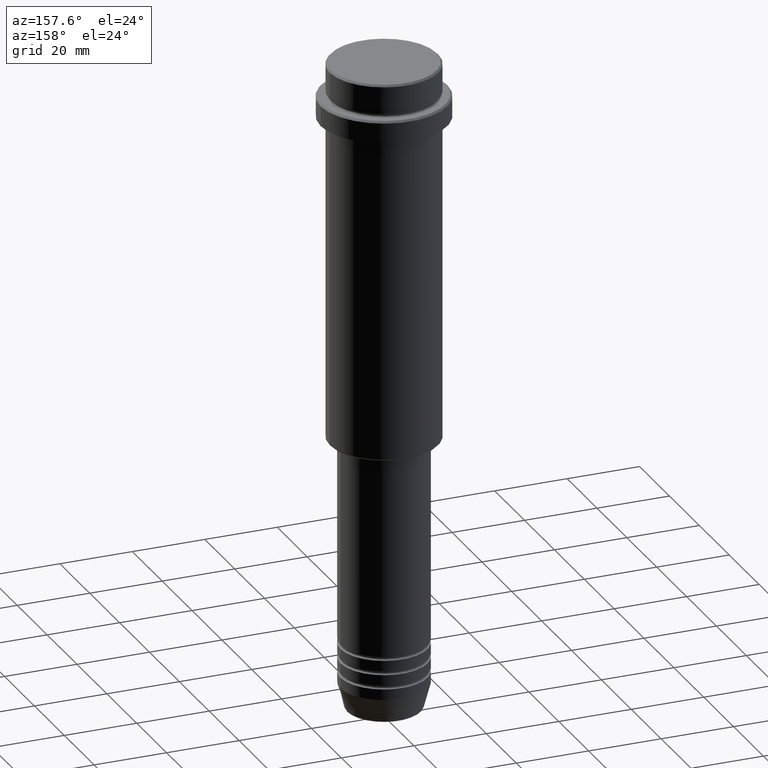
[diagram: clean part render]
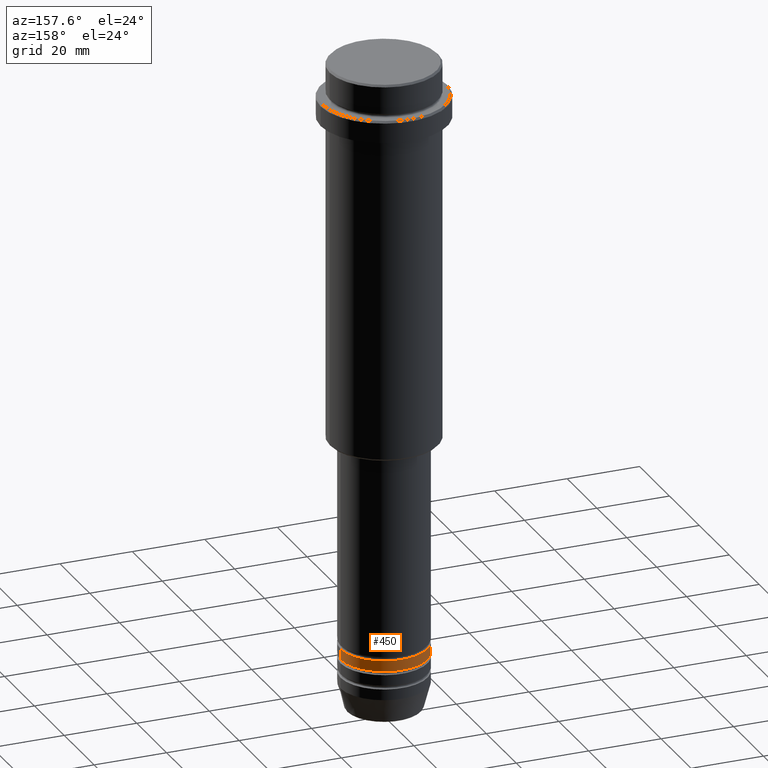
[diagram: same view with one face highlighted and labeled with its STEP entity id]
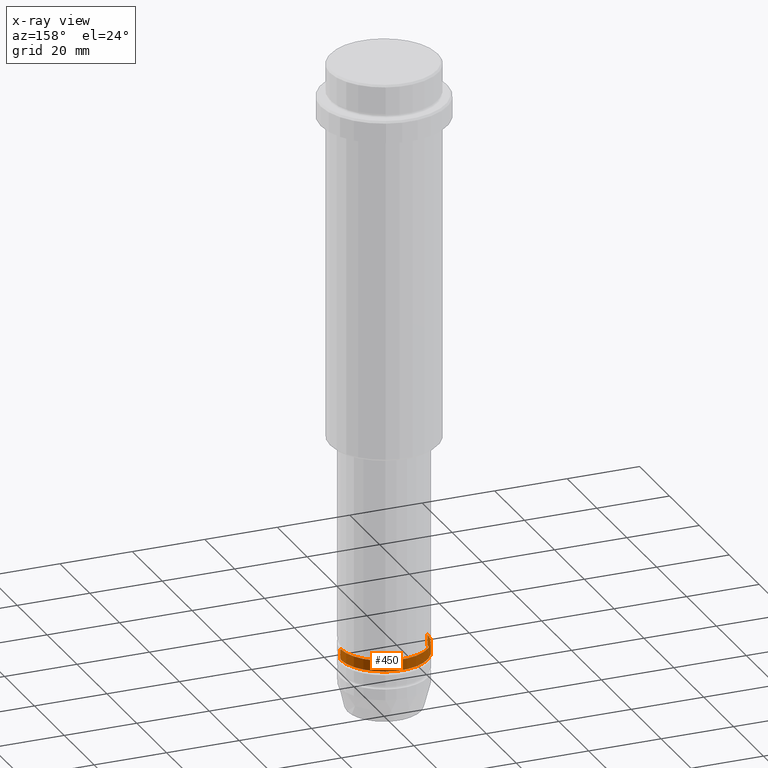
[diagram: x-ray of the same camera — body ghosted, the highlighted face saturated]
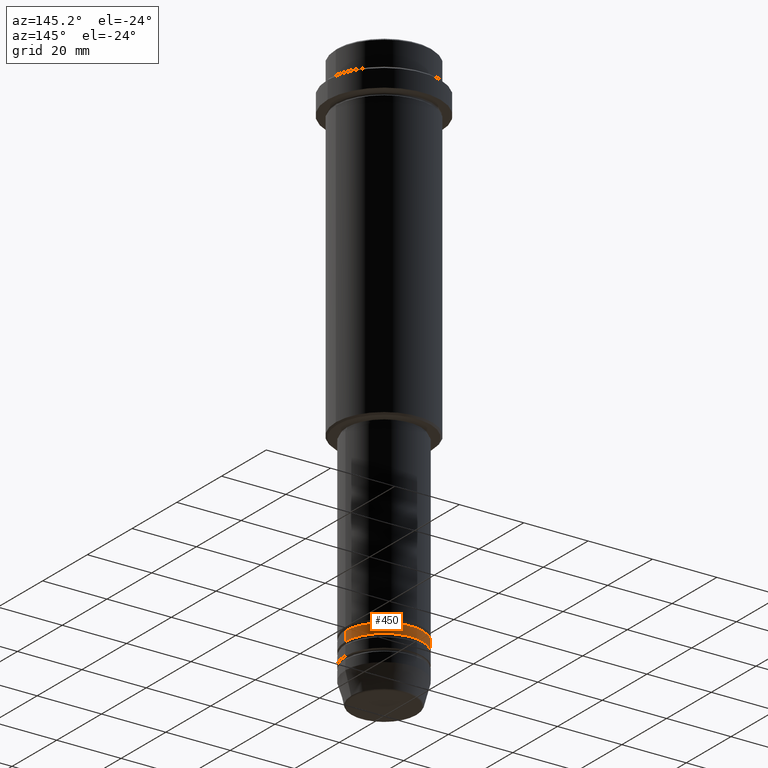
[diagram: same view with one face highlighted and labeled with its STEP entity id]
A machine part, auxiliary view. The second image highlights one B-rep face of the part: STEP entity #450.
The next image is the same camera in x-ray: the body ghosted, the highlighted face saturated — about 0% of this face is hidden behind the body in this view.
A second angle (auxiliary view) of the same face is appended — the face is thin or edge-on in the first view.
In plain terms, the highlighted cylindrical surface (partial cylindrical patch) has radius 12 mm, axis along (-0, -0, 1).
Its self-contained STEP definition (entity closure, byte-faithful):
#22 = AXIS2_PLACEMENT_3D ( 'NONE', #558, #153, #1032 ) ;
#33 = CARTESIAN_POINT ( 'NONE',  ( -12.00000000000000000, 1.469576158976823947E-15, -164.9999999999999147 ) ) ;
#87 = CYLINDRICAL_SURFACE ( 'NONE', #543, 12.00000000000000000 ) ;
#105 = CIRCLE ( 'NONE', #905, 12.00000000000000000 ) ;
#112 = VECTOR ( 'NONE', #1224, 1000.000000000000000 ) ;
#122 = DIRECTION ( 'NONE',  ( -0.000000000000000000, -0.000000000000000000, 1.000000000000000000 ) ) ;
#126 = EDGE_CURVE ( 'NONE', #319, #1051, #236, .T. ) ;
#128 = DIRECTION ( 'NONE',  ( -0.000000000000000000, -0.000000000000000000, 1.000000000000000000 ) ) ;
#147 = LINE ( 'NONE', #581, #112 ) ;
#152 = EDGE_CURVE ( 'NONE', #1247, #319, #105, .T. ) ;
#153 = DIRECTION ( 'NONE',  ( -0.000000000000000000, -0.000000000000000000, 1.000000000000000000 ) ) ;
#158 = CIRCLE ( 'NONE', #22, 12.00000000000000000 ) ;
#236 = LINE ( 'NONE', #868, #679 ) ;
#319 = VERTEX_POINT ( 'NONE', #33 ) ;
#336 = ORIENTED_EDGE ( 'NONE', *, *, #152, .T. ) ;
#363 = VERTEX_POINT ( 'NONE', #401 ) ;
#401 = CARTESIAN_POINT ( 'NONE',  ( 12.00000000000000000, 0.000000000000000000, -161.9999999999999147 ) ) ;
#413 = ORIENTED_EDGE ( 'NONE', *, *, #776, .F. ) ;
#450 = ADVANCED_FACE ( 'NONE', ( #1067 ), #87, .T. ) ;
#507 = CARTESIAN_POINT ( 'NONE',  ( 0.000000000000000000, 0.000000000000000000, 0.000000000000000000 ) ) ;
#543 = AXIS2_PLACEMENT_3D ( 'NONE', #507, #844, #853 ) ;
#558 = CARTESIAN_POINT ( 'NONE',  ( 0.000000000000000000, 0.000000000000000000, -161.9999999999999147 ) ) ;
#581 = CARTESIAN_POINT ( 'NONE',  ( 12.00000000000000000, 0.000000000000000000, 0.000000000000000000 ) ) ;
#632 = DIRECTION ( 'NONE',  ( 1.000000000000000000, 0.000000000000000000, 0.000000000000000000 ) ) ;
#679 = VECTOR ( 'NONE', #122, 1000.000000000000000 ) ;
#776 = EDGE_CURVE ( 'NONE', #1247, #363, #147, .T. ) ;
#821 = EDGE_CURVE ( 'NONE', #363, #1051, #158, .T. ) ;
#844 = DIRECTION ( 'NONE',  ( -0.000000000000000000, -0.000000000000000000, 1.000000000000000000 ) ) ;
#853 = DIRECTION ( 'NONE',  ( 1.000000000000000000, 0.000000000000000000, 0.000000000000000000 ) ) ;
#862 = CARTESIAN_POINT ( 'NONE',  ( -12.00000000000000000, 1.469576158976823947E-15, -161.9999999999999147 ) ) ;
#868 = CARTESIAN_POINT ( 'NONE',  ( -12.00000000000000000, 1.469576158976823947E-15, 0.000000000000000000 ) ) ;
#893 = ORIENTED_EDGE ( 'NONE', *, *, #821, .F. ) ;
#905 = AXIS2_PLACEMENT_3D ( 'NONE', #1322, #128, #632 ) ;
#1032 = DIRECTION ( 'NONE',  ( 1.000000000000000000, 0.000000000000000000, 0.000000000000000000 ) ) ;
#1051 = VERTEX_POINT ( 'NONE', #862 ) ;
#1067 = FACE_OUTER_BOUND ( 'NONE', #1081, .T. ) ;
#1081 = EDGE_LOOP ( 'NONE', ( #336, #1300, #893, #413 ) ) ;
#1144 = CARTESIAN_POINT ( 'NONE',  ( 12.00000000000000000, 0.000000000000000000, -164.9999999999999147 ) ) ;
#1224 = DIRECTION ( 'NONE',  ( -0.000000000000000000, -0.000000000000000000, 1.000000000000000000 ) ) ;
#1247 = VERTEX_POINT ( 'NONE', #1144 ) ;
#1300 = ORIENTED_EDGE ( 'NONE', *, *, #126, .T. ) ;
#1322 = CARTESIAN_POINT ( 'NONE',  ( 0.000000000000000000, 0.000000000000000000, -164.9999999999999147 ) ) ;